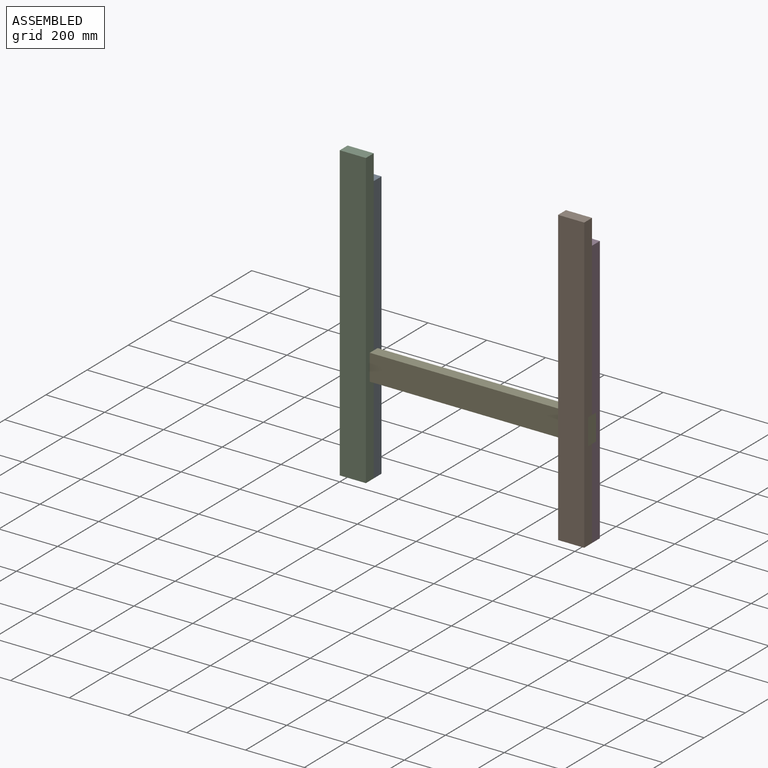
[diagram: assembled view]
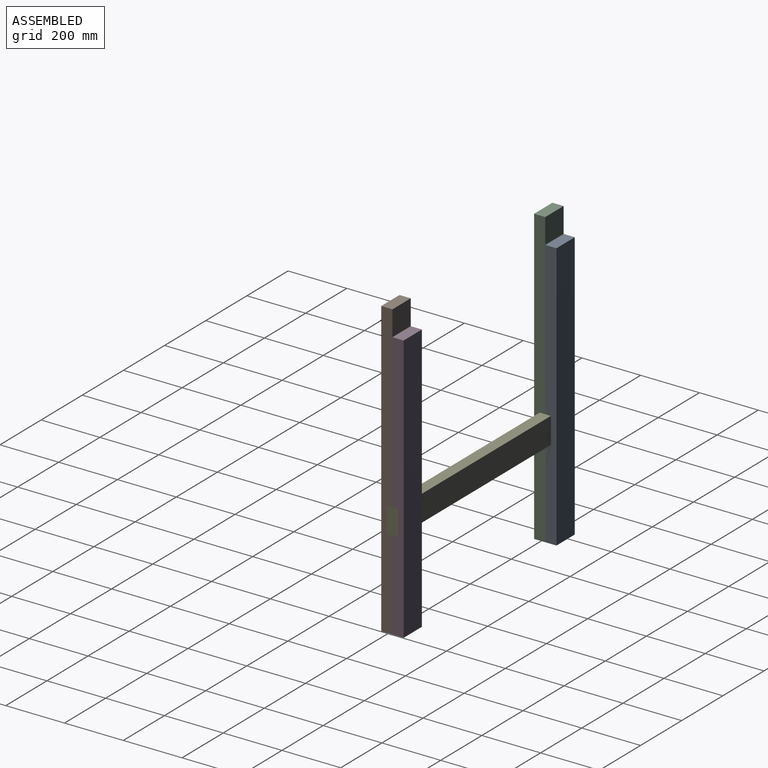
[diagram: assembled view, second angle]
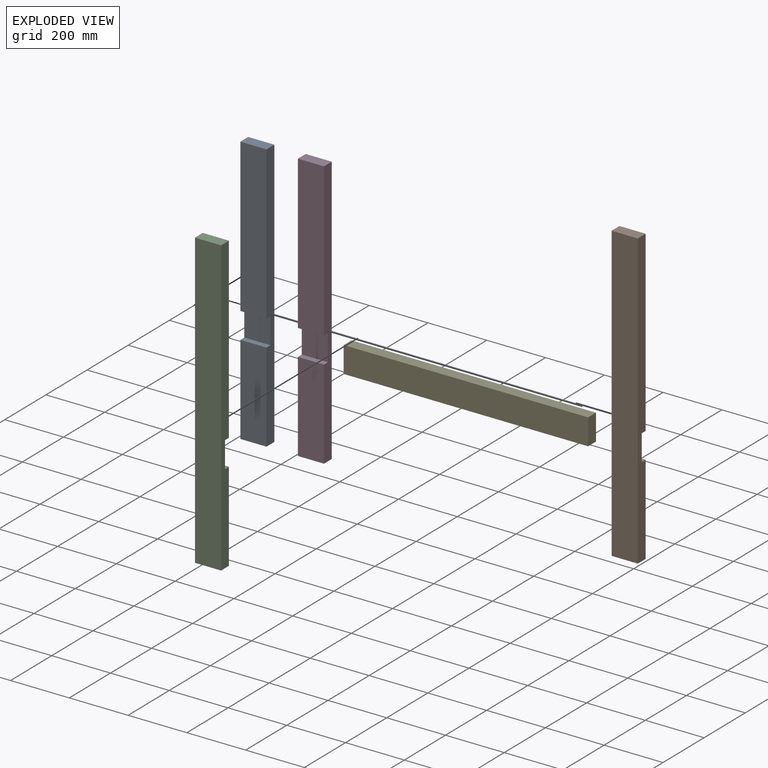
[diagram: exploded view]
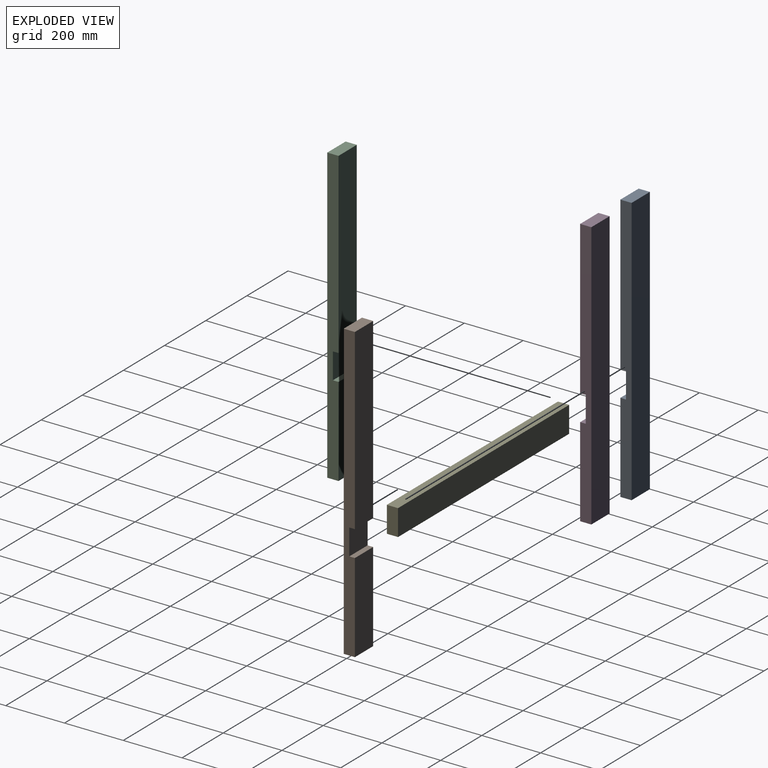
[diagram: exploded view, second angle]
ASSEMBLY  parts=5 mates=4
PART A: 10 faces, bbox 914.4x38.1x88.9 mm
  f0: plane 304.8x88.9mm, normal (0,1,0), area 27096.7mm2, adj f1,f4,f5,f9
  f1: plane 914.4x38.1mm, normal (0,0,-1), area 33145.1mm2, adj f0,f2,f3,f5,f6,f7,f8,f9
  f2: plane 914.4x88.9mm, normal (0,-1,0), area 81290.2mm2, adj f1,f4,f5,f6
  f3: plane 520.7x88.9mm, normal (0,1,0), area 46290.2mm2, adj f1,f4,f6,f7
  f4: plane 914.4x38.1mm, normal (0,0,1), area 33145.1mm2, adj f0,f2,f3,f5,f6,f7,f8,f9
  f5: plane 88.9x38.1mm, normal (1,0,0), area 3387.1mm2, adj f0,f1,f2,f4
  f6: plane 88.9x38.1mm, normal (-1,0,0), area 3387.1mm2, adj f1,f2,f3,f4
  f7: plane 88.9x19.05mm, normal (1,0,0), area 1693.5mm2, adj f1,f3,f4,f8
  f8: plane 88.9x88.9mm, normal (0,1,0), area 7903.2mm2, adj f1,f4,f7,f9
  f9: plane 88.9x19.05mm, normal (-1,0,0), area 1693.5mm2, adj f0,f1,f4,f8
PART B: 10 faces, bbox 1000.1x38.1x88.9 mm
  f0: plane 304.8x88.9mm, normal (0,-1,0), area 27096.7mm2, adj f1,f3,f5,f7
  f1: plane 1000.13x38.1mm, normal (0,0,1), area 36411.2mm2, adj f0,f2,f4,f5,f6,f7,f8,f9
  f2: plane 606.43x88.9mm, normal (0,-1,0), area 53911.2mm2, adj f1,f3,f6,f8
  f3: plane 1000.13x38.1mm, normal (0,0,-1), area 36411.2mm2, adj f0,f2,f4,f5,f6,f7,f8,f9
  f4: plane 1000.13x88.9mm, normal (0,1,0), area 88911.1mm2, adj f1,f3,f5,f6
  f5: plane 88.9x38.1mm, normal (1,0,0), area 3387.1mm2, adj f0,f1,f3,f4
  f6: plane 88.9x38.1mm, normal (-1,0,0), area 3387.1mm2, adj f1,f2,f3,f4
  f7: plane 88.9x19.05mm, normal (-1,0,0), area 1693.5mm2, adj f0,f1,f3,f9
  f8: plane 88.9x19.05mm, normal (1,0,0), area 1693.5mm2, adj f1,f2,f3,f9
  f9: plane 88.9x88.9mm, normal (0,-1,0), area 7903.2mm2, adj f1,f3,f7,f8
PART C: same geometry as B
PART D: same geometry as A
PART E: 6 faces, bbox 831.9x38.1x88.9 mm
  f0: plane 831.85x38.1mm, normal (0,0,1), area 31693.5mm2, adj f1,f3,f4,f5
  f1: plane 831.85x88.9mm, normal (0,-1,0), area 73951.5mm2, adj f0,f2,f4,f5
  f2: plane 831.85x38.1mm, normal (0,0,-1), area 31693.5mm2, adj f1,f3,f4,f5
  f3: plane 831.85x88.9mm, normal (0,1,0), area 73951.5mm2, adj f0,f2,f4,f5
  f4: plane 88.9x38.1mm, normal (1,0,0), area 3387.1mm2, adj f0,f1,f2,f3
  f5: plane 88.9x38.1mm, normal (-1,0,0), area 3387.1mm2, adj f0,f1,f2,f3
PLACE A rot(axis=(0.71,0,-0.71),180deg) t=(88.9,196.85,914.4)mm
PLACE B rot(axis=(0.71,0,-0.71),180deg) t=(831.85,215.9,1000.13)mm
PLACE C rot(axis=(0.71,0,-0.71),180deg) t=(88.9,215.9,1000.13)mm
PLACE D rot(axis=(0.71,0,-0.71),180deg) t=(831.85,196.85,914.4)mm
PLACE E rot(axis=(1,0,0),180deg) t=(0,120.65,393.7)mm
MATE fastened B.f3 <-> E.f4  axis (1,0,0) through (831.85,19.05,304.8)mm
MATE fastened E.f3 <-> C.f9  axis (0,-1,0) through (0,19.05,393.7)mm
MATE fastened A.f4 <-> E.f5  axis (-1,0,0) through (0,57.15,393.7)mm
MATE fastened D.f1 <-> E.f4  axis (-1,0,0) through (831.85,57.15,304.8)mm
